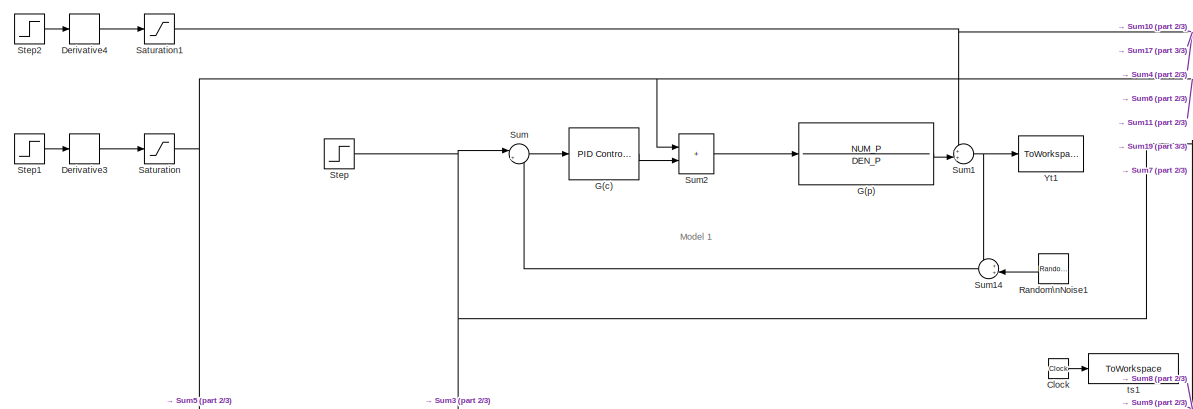
[diagram: root canvas - part 1/3, top left region]
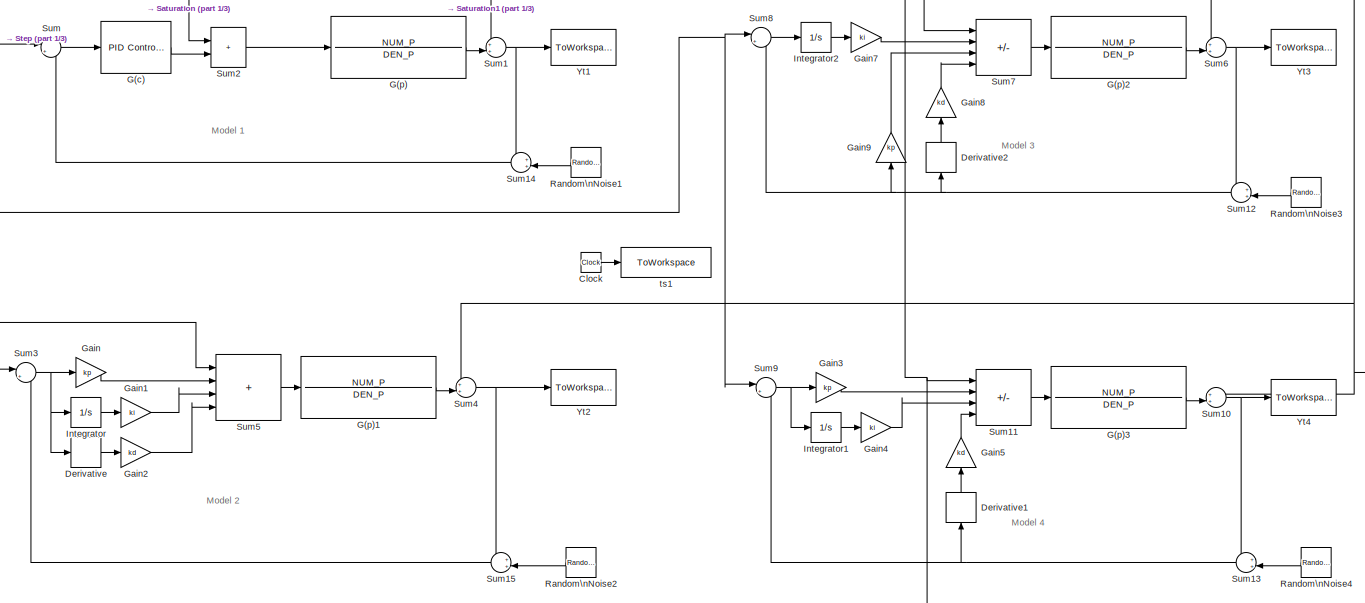
[diagram: root canvas - part 2/3, central region]
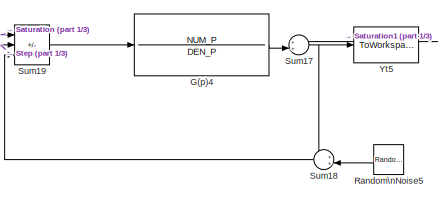
[diagram: root canvas - part 3/3, bottom center region]
MODEL PID
KIND model
BLOCK [Clock] Clock
  AttributesFormatString = %<Tag>
  SID = 13
  Tag = Clock
BLOCK [Derivative] Derivative
  SID = 31
BLOCK [Derivative] Derivative1
  NameLocation = right
  SID = 34
BLOCK [Derivative] Derivative2
  NameLocation = right
  SID = 69
BLOCK [Derivative] Derivative3
  SID = 112
BLOCK [Derivative] Derivative4
  SID = 114
BLOCK [Reference] G(c)  REF=pid_lib/PID Controller
  AWVariant = Passthrough
  AntiWindupMode = none
  Controller = PID
  ControllerParametersSource = internal
  D = kd
  DGainOutDataTypeStr = Inherit: Inherit via internal rule
  DOutMax = []
  DOutMin = []
  DParamDataTypeStr = Inherit: Inherit via internal rule
  DParamMax = []
  DParamMin = []
  DProdOutDataTypeStr = Inherit: Inherit via internal rule
  DVariant = InternalParameters
  DerivativeFilterVariant = ContFilter
  DifferentiatorICPrevScaledInput = 0
  DifferentiatorOutDataTypeStr = Inherit: Inherit via internal rule
  DifferentiatorOutMax = []
  DifferentiatorOutMin = []
  DivideOutDataTypeStr = Inherit: Inherit via internal rule
  DivideOutMax = []
  DivideOutMin = []
  ExternalReset = none
  ExternalResetVariant = Disabled
  ExternalSaturationOutDataTypeStr = Inherit: Same as second input
  FdbkBlocksVariant = Forward
  FilterContinuousStateAttributes = ''
  FilterDiffDenAccumDataTypeStr = Inherit: Inherit via internal rule
  FilterDiffDenProductOutputDataTypeStr = Inherit: Inherit via internal rule
  FilterDiffNumAccumDataTypeStr = Inherit: Inherit via internal rule
  FilterDiffNumProductOutputDataTypeStr = Inherit: Inherit via internal rule
  FilterDiffOutCoefDataTypeStr = Inherit: Inherit via internal rule
  FilterDiffOutCoefMax = []
  FilterDiffOutCoefMin = []
  FilterICVariant = InternalICsFilter
  FilterMethod = Forward Euler
  FilterOutDataTypeStr = Inherit: Inherit via internal rule
  FilterOutMax = []
  FilterOutMin = []
  FilterRTWStateStorageClass = Auto
  FilterStateMustResolveToSignalObject = off
  Form = Parallel
  I = ki
  IGainOutDataTypeStr = Inherit: Inherit via internal rule
  IOutMax = []
  IOutMin = []
  IParamDataTypeStr = Inherit: Inherit via internal rule
  IParamMax = []
  IParamMin = []
  IProdOutDataTypeStr = Inherit: Inherit via internal rule
  IVariant = InternalParameters
  IdealPFdbkVariant = Disabled
  IdealPVariant = Disabled
  IgnoreLimit = off
  InitialConditionForFilter = 0
  InitialConditionForIntegrator = 0
  InitialConditionSetting = Auto
  InitialConditionSource = internal
  IntegratorContinuousStateAttributes = ''
  IntegratorICVariant = InternalICs
  IntegratorMethod = Forward Euler
  IntegratorOutDataTypeStr = Inherit: Inherit via internal rule
  IntegratorOutMax = []
  IntegratorOutMin = []
  IntegratorRTWStateStorageClass = Auto
  IntegratorStateMustResolveToSignalObject = off
  IntegratorVariant = Continuous
  Kb = 1
  KbOutDataTypeStr = Inherit: Inherit via internal rule
  KbOutMax = []
  KbOutMin = []
  KbParamDataTypeStr = Inherit: Inherit via internal rule
  KbParamMax = []
  KbParamMin = []
  Kt = 1
  KtOutDataTypeStr = Inherit: Inherit via internal rule
  KtOutMax = []
  KtOutMin = []
  KtParamDataTypeStr = Inherit: Inherit via internal rule
  KtParamMax = []
  KtParamMin = []
  LimitOutput = off
  LinearizeAsGain = on
  LockScale = off
  LowerSaturationLimit = -inf
  N = 100
  NCopyVariant = Disabled
  NGainOutDataTypeStr = Inherit: Inherit via internal rule
  NOutMax = []
  NOutMin = []
  NParamDataTypeStr = Inherit: Inherit via internal rule
  NParamMax = []
  NParamMin = []
  NProdOutDataTypeStr = Inherit: Inherit via internal rule
  NTsProdOutDataTypeStr = Inherit: Inherit via internal rule
  NTsProdOutMax = []
  NTsProdOutMin = []
  NVariant = InternalParameters
  P = kp
  PCopyVariant = Disabled
  PGainOutDataTypeStr = Inherit: Inherit via internal rule
  POutMax = []
  POutMin = []
  PParamDataTypeStr = Inherit: Inherit via internal rule
  PParamMax = []
  PParamMin = []
  PProdOutDataTypeStr = Inherit: Inherit via internal rule
  ParallelPVariant = InternalParameters
  Ports = [1, 1]
  RTWMemSecDataConstants = Inherit from model
  RTWMemSecDataInternal = Inherit from model
  RTWMemSecDataParameters = Inherit from model
  RTWMemSecFuncExecute = Inherit from model
  RTWMemSecFuncInitTerm = Inherit from model
  ReciprocalOutDataTypeStr = Inherit: Inherit via internal rule
  ReciprocalOutMax = []
  ReciprocalOutMin = []
  RndMeth = Floor
  SID = 2
  SampleTime = -1
  SatFdbkVariant = Disabled
  SatLimitsSource = internal
  SatVariant = Disabled
  SaturateOnIntegerOverflow = off
  SaturationOutDataTypeStr = Inherit: Same as input
  SaturationOutMax = []
  SaturationOutMin = []
  SourceBlock = pid_lib/PID Controller
  SourceProductBaseCode = SL
  SourceType = PID 1dof
  SumAccumDataTypeStr = Inherit: Inherit via internal rule
  SumDAccumDataTypeStr = Inherit: Inherit via internal rule
  SumDOutDataTypeStr = Inherit: Inherit via internal rule
  SumDOutMax = []
  SumDOutMin = []
  SumDenAccumDataTypeStr = Inherit: Inherit via internal rule
  SumDenOutDataTypeStr = Inherit: Inherit via internal rule
  SumDenOutMax = []
  SumDenOutMin = []
  SumFdbkVariant = Disabled
  SumI1AccumDataTypeStr = Inherit: Inherit via internal rule
  SumI1OutDataTypeStr = Inherit: Inherit via internal rule
  SumI1OutMax = []
  SumI1OutMin = []
  SumI2AccumDataTypeStr = Inherit: Inherit via internal rule
  SumI2OutDataTypeStr = Inherit: Inherit via internal rule
  SumI2OutMax = []
  SumI2OutMin = []
  SumI3AccumDataTypeStr = Inherit: Inherit via internal rule
  SumI3OutDataTypeStr = Inherit: Inherit via internal rule
  SumI3OutMax = []
  SumI3OutMin = []
  SumI4AccumDataTypeStr = Inherit: Inherit via internal rule
  SumI4OutDataTypeStr = Inherit: Inherit via internal rule
  SumI4OutMax = []
  SumI4OutMin = []
  SumNumAccumDataTypeStr = Inherit: Inherit via internal rule
  SumNumOutDataTypeStr = Inherit: Inherit via internal rule
  SumNumOutMax = []
  SumNumOutMin = []
  SumOutDataTypeStr = Inherit: Inherit via internal rule
  SumOutMax = []
  SumOutMin = []
  SumVariant = Sum_PID
  TRSumVariant = Passthrough
  TRVariant = Disabled
  TimeDomain = Continuous-time
  TrackingMode = off
  TsampFilterVariant = InternalTs
  TsampIntegralVariant = Passthrough
  TsampNgainVariant = Passthrough
  TunerSelectOption = Transfer Function Based (PID Tuner App)
  UdiffTsProdOutDataTypeStr = Inherit: Inherit via internal rule
  UdiffTsProdOutMax = []
  UdiffTsProdOutMin = []
  UintegralTsProdOutDataTypeStr = Inherit: Inherit via internal rule
  UintegralTsProdOutMax = []
  UintegralTsProdOutMin = []
  UngainTsProdOutDataTypeStr = Inherit: Inherit via internal rule
  UngainTsProdOutMax = []
  UngainTsProdOutMin = []
  UpperSaturationLimit = inf
  UseExternalTs = off
  UseFilter = on
  ZeroCross = on
BLOCK [TransferFcn] G(p)
  Denominator = DEN_P
  Numerator = NUM_P
  SID = 1
BLOCK [TransferFcn] G(p)1
  Denominator = DEN_P
  Numerator = NUM_P
  SID = 22
BLOCK [TransferFcn] G(p)2
  Denominator = DEN_P
  Numerator = NUM_P
  SID = 71
BLOCK [TransferFcn] G(p)3
  Denominator = DEN_P
  Numerator = NUM_P
  SID = 39
BLOCK [TransferFcn] G(p)4
  Denominator = DEN_P
  Numerator = NUM_P
  SID = 99
BLOCK [Gain] Gain
  Gain = kp
  SID = 29
BLOCK [Gain] Gain1
  Gain = ki
  SID = 32
BLOCK [Gain] Gain2
  Gain = kd
  SID = 33
BLOCK [Gain] Gain3
  Gain = kp
  SID = 40
BLOCK [Gain] Gain4
  Gain = ki
  SID = 41
BLOCK [Gain] Gain5
  Gain = kd
  NameLocation = right
  SID = 42
BLOCK [Gain] Gain7
  Gain = ki
  SID = 73
BLOCK [Gain] Gain8
  Gain = kd
  NameLocation = right
  SID = 74
BLOCK [Gain] Gain9
  Gain = kp
  NameLocation = right
  SID = 82
BLOCK [Integrator] Integrator
  Ports = [1, 1]
  SID = 30
BLOCK [Integrator] Integrator1
  Ports = [1, 1]
  SID = 43
BLOCK [Integrator] Integrator2
  Ports = [1, 1]
  SID = 75
BLOCK [RandomNumber] Random\nNoise1
  Mean = noise_amp
  NameLocation = top
  SID = 89
  SampleTime = 1/noise_freq
  Variance = noise_var
BLOCK [RandomNumber] Random\nNoise2
  Mean = noise_amp
  NameLocation = top
  SID = 92
  SampleTime = 1/noise_freq
  Variance = noise_var
BLOCK [RandomNumber] Random\nNoise3
  Mean = noise_amp
  NameLocation = top
  SID = 76
  SampleTime = 1/noise_freq
  Variance = noise_var
BLOCK [RandomNumber] Random\nNoise4
  Mean = noise_amp
  NameLocation = top
  SID = 85
  SampleTime = 1/noise_freq
  Variance = noise_var
BLOCK [RandomNumber] Random\nNoise5
  Mean = noise_amp
  NameLocation = top
  SID = 102
  SampleTime = 1/noise_freq
  Variance = noise_var
BLOCK [Saturate] Saturation
  LowerLimit = 0
  SID = 116
  UpperLimit = dis_in_amp
BLOCK [Saturate] Saturation1
  LowerLimit = 0
  SID = 117
  UpperLimit = dis_out_amp
BLOCK [Step] Step
  After = sp
  AttributesFormatString = %<Name>
  SID = 4
  SampleTime = 0
BLOCK [Step] Step1
  AttributesFormatString = %<Name>
  SID = 113
  SampleTime = 0
  Time = dis_in_time
BLOCK [Step] Step2
  AttributesFormatString = %<Name>
  SID = 115
  SampleTime = 0
  Time = dis_out_time
BLOCK [Sum] Sum
  Inputs = |+-
  Ports = [2, 1]
  SID = 5
BLOCK [Sum] Sum1
  Inputs = ++|
  Ports = [2, 1]
  SID = 12
BLOCK [Sum] Sum10
  Inputs = ++|
  Ports = [2, 1]
  SID = 52
BLOCK [Sum] Sum11
  IconShape = rectangular
  Inputs = +++-|
  NameLocation = right
  Ports = [4, 1]
  SID = 53
BLOCK [Sum] Sum12
  Inputs = ++|
  NameLocation = top
  Ports = [2, 1]
  SID = 84
BLOCK [Sum] Sum13
  Inputs = ++|
  NameLocation = top
  Ports = [2, 1]
  SID = 86
BLOCK [Sum] Sum14
  Inputs = ++|
  NameLocation = top
  Ports = [2, 1]
  SID = 90
BLOCK [Sum] Sum15
  Inputs = ++|
  NameLocation = top
  Ports = [2, 1]
  SID = 93
BLOCK [Sum] Sum17
  Inputs = ++|
  Ports = [2, 1]
  SID = 105
BLOCK [Sum] Sum18
  Inputs = ++|
  NameLocation = top
  Ports = [2, 1]
  SID = 106
BLOCK [Sum] Sum19
  IconShape = rectangular
  Inputs = ++-|
  Ports = [3, 1]
  SID = 107
BLOCK [Sum] Sum2
  IconShape = rectangular
  Inputs = ++|
  Ports = [2, 1]
  SID = 9
BLOCK [Sum] Sum3
  Inputs = |+-
  Ports = [2, 1]
  SID = 25
BLOCK [Sum] Sum4
  Inputs = ++|
  Ports = [2, 1]
  SID = 26
BLOCK [Sum] Sum5
  IconShape = rectangular
  Inputs = ++++|
  NameLocation = right
  Ports = [4, 1]
  SID = 27
BLOCK [Sum] Sum6
  Inputs = ++|
  Ports = [2, 1]
  SID = 78
BLOCK [Sum] Sum7
  IconShape = rectangular
  Inputs = ++--|
  NameLocation = right
  Ports = [4, 1]
  SID = 79
BLOCK [Sum] Sum8
  Inputs = |+-
  Ports = [2, 1]
  SID = 80
BLOCK [Sum] Sum9
  Inputs = |+-
  Ports = [2, 1]
  SID = 51
BLOCK [ToWorkspace] Yt1
  FixptAsFi = on
  MaxDataPoints = inf
  Ports = [1]
  SID = 15
  SampleTime = -1
  Save2DSignal = 2-D array (concatenate along first dimension)
  VariableName = yt1
BLOCK [ToWorkspace] Yt2
  FixptAsFi = on
  MaxDataPoints = inf
  Ports = [1]
  SID = 28
  SampleTime = -1
  Save2DSignal = 2-D array (concatenate along first dimension)
  VariableName = yt2
BLOCK [ToWorkspace] Yt3
  FixptAsFi = on
  MaxDataPoints = inf
  Ports = [1]
  SID = 81
  SampleTime = -1
  Save2DSignal = 2-D array (concatenate along first dimension)
  VariableName = yt3
BLOCK [ToWorkspace] Yt4
  FixptAsFi = on
  MaxDataPoints = inf
  Ports = [1]
  SID = 55
  SampleTime = -1
  Save2DSignal = 2-D array (concatenate along first dimension)
  VariableName = yt4
BLOCK [ToWorkspace] Yt5
  FixptAsFi = on
  MaxDataPoints = inf
  Ports = [1]
  SID = 108
  SampleTime = -1
  Save2DSignal = 2-D array (concatenate along first dimension)
  VariableName = ytp
BLOCK [ToWorkspace] ts1
  FixptAsFi = on
  MaxDataPoints = inf
  Ports = [1]
  SID = 19
  SampleTime = -1
  Save2DSignal = 2-D array (concatenate along first dimension)
  VariableName = ts1
ANNOTATION (root): \n \n Model 1
ANNOTATION (root): \n \n Model 2
ANNOTATION (root): \n \n Model 3
ANNOTATION (root): \n \n Model 4
LINE Clock:1 -> ts1:1
LINE Derivative1:1 -> Gain5:1
LINE Derivative2:1 -> Gain8:1
LINE Derivative3:1 -> Saturation:1
LINE Derivative4:1 -> Saturation1:1
LINE Derivative:1 -> Gain2:1
LINE G(c):1 -> Sum2:2
LINE G(p)1:1 -> Sum4:2
LINE G(p)2:1 -> Sum6:2
LINE G(p)3:1 -> Sum10:2
LINE G(p)4:1 -> Sum17:2
LINE G(p):1 -> Sum1:2
LINE Gain1:1 -> Sum5:3
LINE Gain2:1 -> Sum5:4
LINE Gain3:1 -> Sum11:2
LINE Gain4:1 -> Sum11:3
LINE Gain5:1 -> Sum11:4
LINE Gain7:1 -> Sum7:2
LINE Gain8:1 -> Sum7:4
LINE Gain9:1 -> Sum7:3
LINE Gain:1 -> Sum5:2
LINE Integrator1:1 -> Gain4:1
LINE Integrator2:1 -> Gain7:1
LINE Integrator:1 -> Gain1:1
LINE Random\nNoise1:1 -> Sum14:2
LINE Random\nNoise2:1 -> Sum15:2
LINE Random\nNoise3:1 -> Sum12:2
LINE Random\nNoise4:1 -> Sum13:2
LINE Random\nNoise5:1 -> Sum18:2
NET Saturation1:1 -> Sum10:1, Sum17:1, Sum1:1, Sum4:1, Sum6:1
NET Saturation:1 -> Sum11:1, Sum19:1, Sum2:1, Sum5:1, Sum7:1
LINE Step1:1 -> Derivative3:1
LINE Step2:1 -> Derivative4:1
NET Step:1 -> Sum19:2, Sum3:1, Sum8:1, Sum9:1, Sum:1
NET Sum10:1 -> Sum13:1, Yt4:1
LINE Sum11:1 -> G(p)3:1
NET Sum12:1 -> Derivative2:1, Gain9:1, Sum8:2
NET Sum13:1 -> Derivative1:1, Sum9:2
LINE Sum14:1 -> Sum:2
LINE Sum15:1 -> Sum3:2
NET Sum17:1 -> Sum18:1, Yt5:1
LINE Sum18:1 -> Sum19:3
LINE Sum19:1 -> G(p)4:1
NET Sum1:1 -> Sum14:1, Yt1:1
LINE Sum2:1 -> G(p):1
NET Sum3:1 -> Derivative:1, Gain:1, Integrator:1
NET Sum4:1 -> Sum15:1, Yt2:1
LINE Sum5:1 -> G(p)1:1
NET Sum6:1 -> Sum12:1, Yt3:1
LINE Sum7:1 -> G(p)2:1
LINE Sum8:1 -> Integrator2:1
NET Sum9:1 -> Gain3:1, Integrator1:1
LINE Sum:1 -> G(c):1
note: NET lines group one-source signal fan-out (src -> all destinations, sorted); 1:1 wires keep LINE
